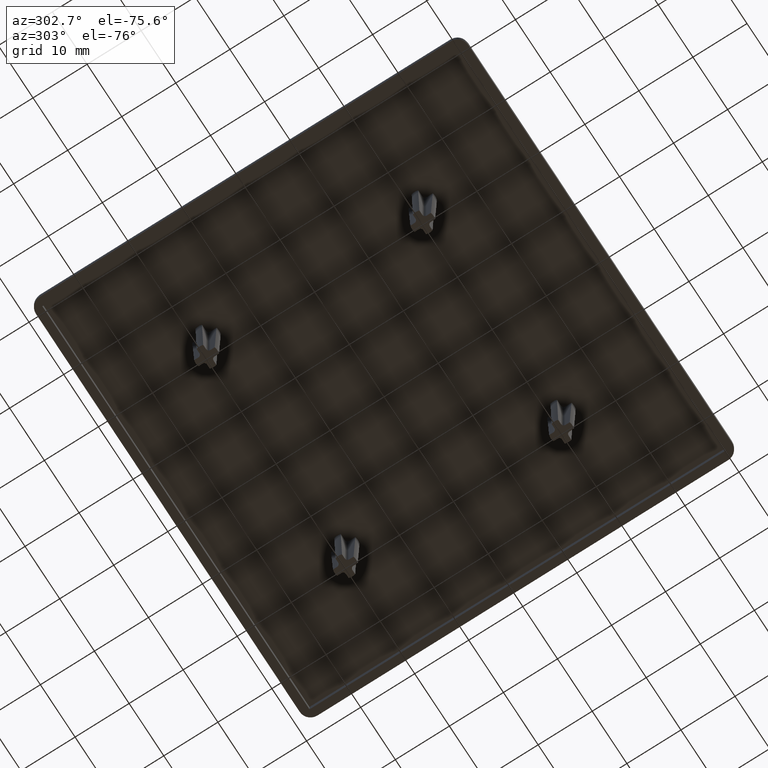
[diagram: clean part render]
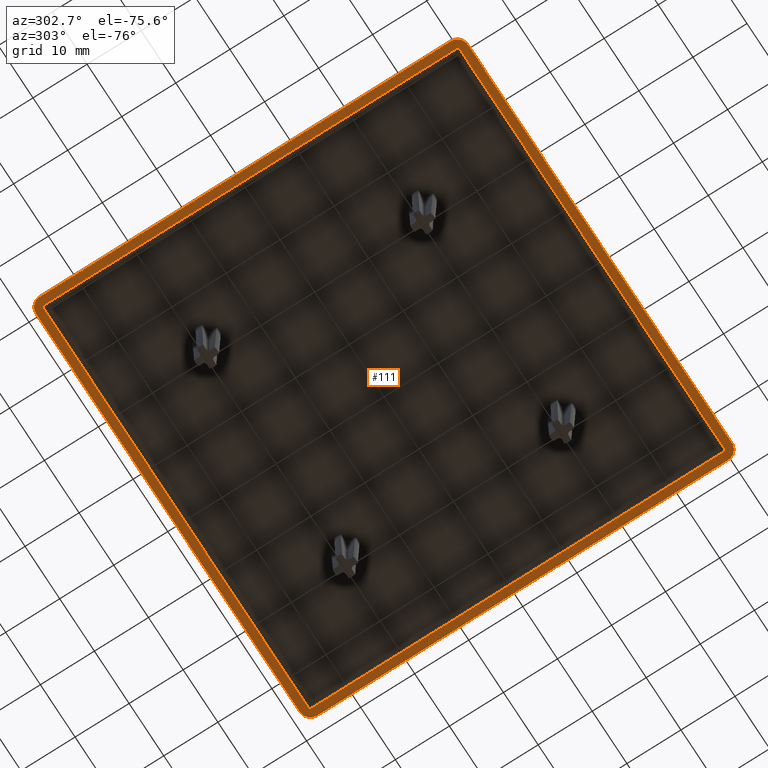
[diagram: same view with one face highlighted and labeled with its STEP entity id]
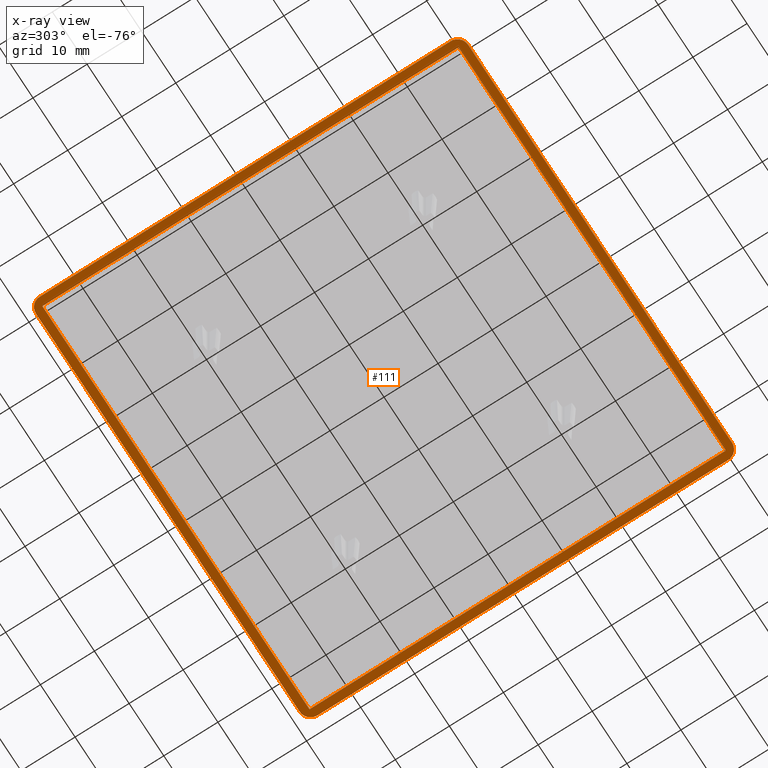
[diagram: x-ray of the same camera — body ghosted, the highlighted face saturated]
A machine part, auxiliary view. The second image highlights one B-rep face of the part: STEP entity #111.
The next image is the same camera in x-ray: the body ghosted, the highlighted face saturated — about 0% of this face is hidden behind the body in this view.
In plain terms, the highlighted planar face has unit normal (0, 0, 1).
Its self-contained STEP definition (entity closure, byte-faithful):
#2=CARTESIAN_POINT('',(-48.000004724429267,-8.000004724580791,0.0));
#3=DIRECTION('',(0.0,0.0,1.0));
#4=DIRECTION('',(1.0,0.0,0.0));
#5=AXIS2_PLACEMENT_3D('',#2,#3,#4);
#6=PLANE('',#5);
#7=CARTESIAN_POINT('',(39.999999999839929,2.0,0.0));
#8=VERTEX_POINT('',#7);
#9=CARTESIAN_POINT('',(37.999999999839929,0.0,0.0));
#10=VERTEX_POINT('',#9);
#11=CARTESIAN_POINT('',(37.999999999839929,2.0,0.0));
#12=DIRECTION('',(0.0,0.0,-1.0));
#13=DIRECTION('',(1.0,0.0,0.0));
#14=AXIS2_PLACEMENT_3D('',#11,#12,#13);
#15=CIRCLE('',#14,2.0);
#16=EDGE_CURVE('',#8,#10,#15,.T.);
#17=ORIENTED_EDGE('',*,*,#16,.T.);
#18=CARTESIAN_POINT('',(-37.999999999839929,0.0,0.0));
#19=VERTEX_POINT('',#18);
#20=CARTESIAN_POINT('',(-37.999999999839929,0.0,0.0));
#21=DIRECTION('',(1.0,0.0,0.0));
#22=VECTOR('',#21,75.999999999679858);
#23=LINE('',#20,#22);
#24=EDGE_CURVE('',#19,#10,#23,.T.);
#25=ORIENTED_EDGE('',*,*,#24,.F.);
#26=CARTESIAN_POINT('',(-39.999999999839929,2.0,0.0));
#27=VERTEX_POINT('',#26);
#28=CARTESIAN_POINT('',(-37.999999999839929,2.0,0.0));
#29=DIRECTION('',(0.0,0.0,-1.0));
#30=DIRECTION('',(0.0,-1.0,0.0));
#31=AXIS2_PLACEMENT_3D('',#28,#29,#30);
#32=CIRCLE('',#31,2.0);
#33=EDGE_CURVE('',#19,#27,#32,.T.);
#34=ORIENTED_EDGE('',*,*,#33,.T.);
#35=CARTESIAN_POINT('',(-39.999999999839922,77.999999999679900,0.0));
#36=VERTEX_POINT('',#35);
#37=CARTESIAN_POINT('',(-39.999999999839922,77.999999999679900,0.0));
#38=DIRECTION('',(0.0,-1.0,0.0));
#39=VECTOR('',#38,75.999999999679900);
#40=LINE('',#37,#39);
#41=EDGE_CURVE('',#36,#27,#40,.T.);
#42=ORIENTED_EDGE('',*,*,#41,.F.);
#43=CARTESIAN_POINT('',(-37.999999999839922,79.999999999679900,0.0));
#44=VERTEX_POINT('',#43);
#45=CARTESIAN_POINT('',(-37.999999999839922,77.999999999679900,0.0));
#46=DIRECTION('',(0.0,0.0,-1.0));
#47=DIRECTION('',(-1.0,0.0,0.0));
#48=AXIS2_PLACEMENT_3D('',#45,#46,#47);
#49=CIRCLE('',#48,2.0);
#50=EDGE_CURVE('',#36,#44,#49,.T.);
#51=ORIENTED_EDGE('',*,*,#50,.T.);
#52=CARTESIAN_POINT('',(37.999999999839936,79.999999999679886,0.0));
#53=VERTEX_POINT('',#52);
#54=CARTESIAN_POINT('',(37.999999999839936,79.999999999679886,0.0));
#55=DIRECTION('',(-1.0,0.0,0.0));
#56=VECTOR('',#55,75.999999999679858);
#57=LINE('',#54,#56);
#58=EDGE_CURVE('',#53,#44,#57,.T.);
#59=ORIENTED_EDGE('',*,*,#58,.F.);
#60=CARTESIAN_POINT('',(39.999999999839936,77.999999999679886,0.0));
#61=VERTEX_POINT('',#60);
#62=CARTESIAN_POINT('',(37.999999999839936,77.999999999679886,0.0));
#63=DIRECTION('',(0.0,0.0,-1.0));
#64=DIRECTION('',(0.0,1.0,0.0));
#65=AXIS2_PLACEMENT_3D('',#62,#63,#64);
#66=CIRCLE('',#65,2.000000000000001);
#67=EDGE_CURVE('',#53,#61,#66,.T.);
#68=ORIENTED_EDGE('',*,*,#67,.T.);
#69=CARTESIAN_POINT('',(39.999999999839929,2.0,0.0));
#70=DIRECTION('',(0.0,1.0,0.0));
#71=VECTOR('',#70,75.999999999679886);
#72=LINE('',#69,#71);
#73=EDGE_CURVE('',#8,#61,#72,.T.);
#74=ORIENTED_EDGE('',*,*,#73,.F.);
#75=EDGE_LOOP('',(#17,#25,#34,#42,#51,#59,#68,#74));
#76=FACE_OUTER_BOUND('',#75,.T.);
#77=CARTESIAN_POINT('',(38.500000332846071,1.499999666993958,0.0));
#78=VERTEX_POINT('',#77);
#79=CARTESIAN_POINT('',(-38.500000332845957,1.499999666993958,0.0));
#80=VERTEX_POINT('',#79);
#81=CARTESIAN_POINT('',(38.500000332846071,1.499999666993958,0.0));
#82=DIRECTION('',(-1.0,0.0,0.0));
#83=VECTOR('',#82,77.000000665692028);
#84=LINE('',#81,#83);
#85=EDGE_CURVE('',#78,#80,#84,.T.);
#86=ORIENTED_EDGE('',*,*,#85,.F.);
#87=CARTESIAN_POINT('',(38.500000332846071,78.500000332685914,0.0));
#88=VERTEX_POINT('',#87);
#89=CARTESIAN_POINT('',(38.500000332846071,78.500000332685914,0.0));
#90=DIRECTION('',(0.0,-1.0,0.0));
#91=VECTOR('',#90,77.000000665691957);
#92=LINE('',#89,#91);
#93=EDGE_CURVE('',#88,#78,#92,.T.);
#94=ORIENTED_EDGE('',*,*,#93,.F.);
#95=CARTESIAN_POINT('',(-38.500000332845957,78.500000332685914,0.0));
#96=VERTEX_POINT('',#95);
#97=CARTESIAN_POINT('',(-38.500000332845957,78.500000332685914,0.0));
#98=DIRECTION('',(1.0,0.0,0.0));
#99=VECTOR('',#98,77.000000665692028);
#100=LINE('',#97,#99);
#101=EDGE_CURVE('',#96,#88,#100,.T.);
#102=ORIENTED_EDGE('',*,*,#101,.F.);
#103=CARTESIAN_POINT('',(-38.500000332845957,1.499999666993958,0.0));
#104=DIRECTION('',(0.0,1.0,0.0));
#105=VECTOR('',#104,77.000000665691957);
#106=LINE('',#103,#105);
#107=EDGE_CURVE('',#80,#96,#106,.T.);
#108=ORIENTED_EDGE('',*,*,#107,.F.);
#109=EDGE_LOOP('',(#86,#94,#102,#108));
#110=FACE_BOUND('',#109,.T.);
#111=ADVANCED_FACE('',(#76,#110),#6,.F.);